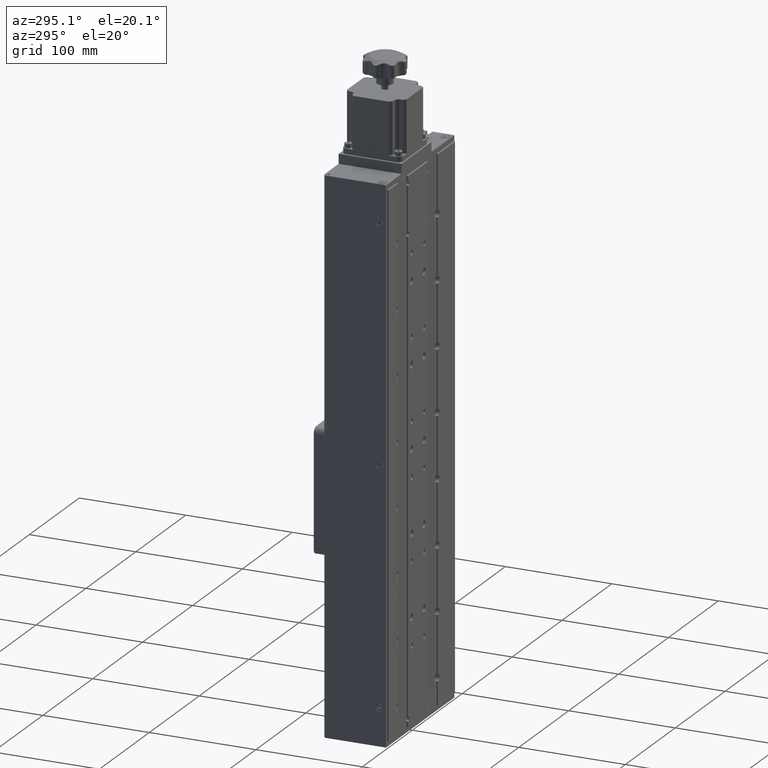
[diagram: clean part render]
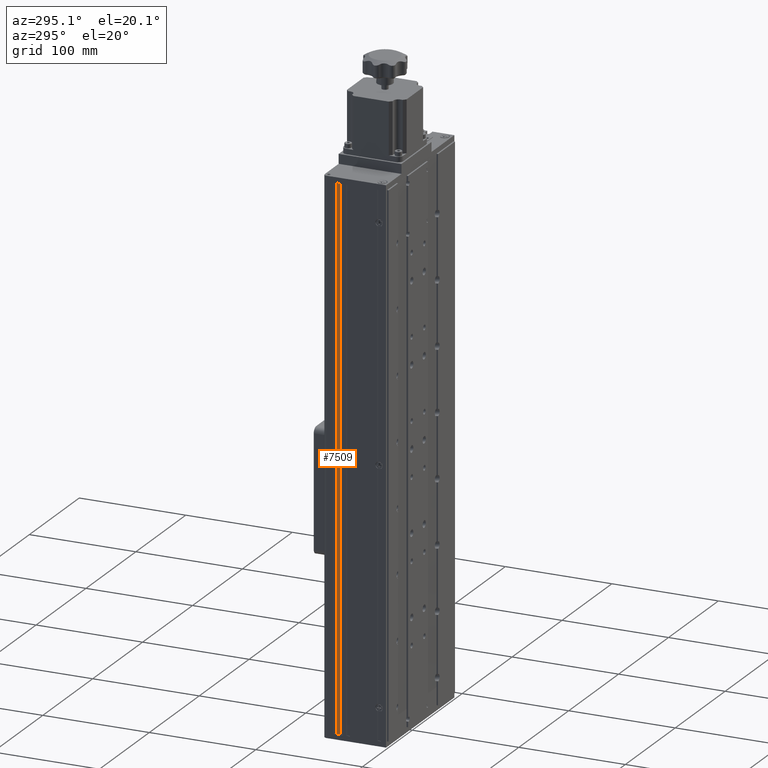
[diagram: same view with one face highlighted and labeled with its STEP entity id]
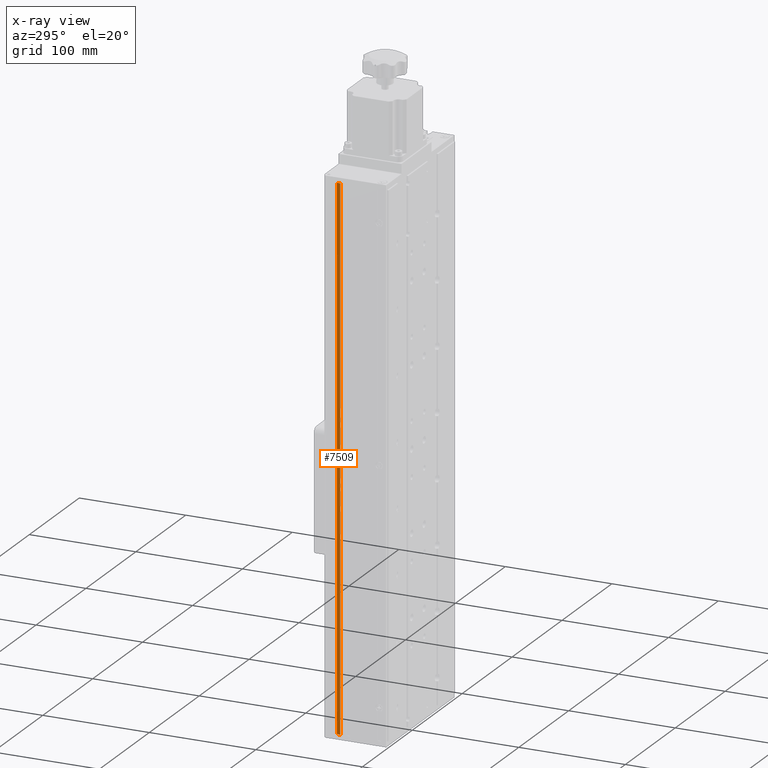
[diagram: x-ray of the same camera — body ghosted, the highlighted face saturated]
A machine part, auxiliary view. The second image highlights one B-rep face of the part: STEP entity #7509.
The next image is the same camera in x-ray: the body ghosted, the highlighted face saturated — about 0% of this face is hidden behind the body in this view.
In plain terms, the highlighted planar face has unit normal (-1, 0, 0).
Its self-contained STEP definition (entity closure, byte-faithful):
#753 = ORIENTED_EDGE ( 'NONE', *, *, #3203, .F. ) ;
#1406 = VERTEX_POINT ( 'NONE', #30058 ) ;
#2674 = DIRECTION ( 'NONE',  ( 0.0000000000000000000, 1.000000000000000000, 0.0000000000000000000 ) ) ;
#3203 = EDGE_CURVE ( 'NONE', #1406, #8827, #21294, .T. ) ;
#3245 = CARTESIAN_POINT ( 'NONE',  ( -71.61080835603992500, 34.08234937935211000, 249.5000000000000000 ) ) ;
#3834 = VERTEX_POINT ( 'NONE', #27127 ) ;
#4130 = CARTESIAN_POINT ( 'NONE',  ( -71.61080835603992500, 37.08234937935210200, 249.5000000000000000 ) ) ;
#4860 = ORIENTED_EDGE ( 'NONE', *, *, #32011, .T. ) ;
#4953 = ORIENTED_EDGE ( 'NONE', *, *, #8418, .F. ) ;
#6518 = DIRECTION ( 'NONE',  ( 0.0000000000000000000, 0.0000000000000000000, 1.000000000000000000 ) ) ;
#6607 = VECTOR ( 'NONE', #7232, 1000.000000000000000 ) ;
#6741 = VECTOR ( 'NONE', #2674, 1000.000000000000000 ) ;
#7232 = DIRECTION ( 'NONE',  ( -0.0000000000000000000, -0.0000000000000000000, -1.000000000000000000 ) ) ;
#7509 = ADVANCED_FACE ( 'NONE', ( #25312 ), #9682, .T. ) ;
#8135 = CARTESIAN_POINT ( 'NONE',  ( -71.61080835603992500, 34.08234937935211000, 249.5000000000000000 ) ) ;
#8418 = EDGE_CURVE ( 'NONE', #8827, #3834, #29700, .T. ) ;
#8827 = VERTEX_POINT ( 'NONE', #33276 ) ;
#9682 = PLANE ( 'NONE',  #17285 ) ;
#9928 = ORIENTED_EDGE ( 'NONE', *, *, #20251, .T. ) ;
#11742 = DIRECTION ( 'NONE',  ( 0.0000000000000000000, 1.000000000000000000, 0.0000000000000000000 ) ) ;
#14621 = DIRECTION ( 'NONE',  ( -0.0000000000000000000, -0.0000000000000000000, -1.000000000000000000 ) ) ;
#15020 = CARTESIAN_POINT ( 'NONE',  ( -71.61080835603992500, 34.08234937935211000, -249.5000000000000000 ) ) ;
#16954 = CARTESIAN_POINT ( 'NONE',  ( -71.61080835603992500, 37.08234937935210200, 249.5000000000000000 ) ) ;
#17285 = AXIS2_PLACEMENT_3D ( 'NONE', #3245, #26058, #6518 ) ;
#20251 = EDGE_CURVE ( 'NONE', #1406, #37937, #33765, .T. ) ;
#21294 = LINE ( 'NONE', #8135, #28948 ) ;
#24994 = LINE ( 'NONE', #16954, #6607 ) ;
#25312 = FACE_OUTER_BOUND ( 'NONE', #29723, .T. ) ;
#26058 = DIRECTION ( 'NONE',  ( -1.000000000000000000, 0.0000000000000000000, 0.0000000000000000000 ) ) ;
#27127 = CARTESIAN_POINT ( 'NONE',  ( -71.61080835603992500, 37.08234937935210200, -249.5000000000000000 ) ) ;
#28948 = VECTOR ( 'NONE', #14621, 1000.000000000000000 ) ;
#29700 = LINE ( 'NONE', #15020, #37318 ) ;
#29723 = EDGE_LOOP ( 'NONE', ( #4953, #753, #9928, #4860 ) ) ;
#30058 = CARTESIAN_POINT ( 'NONE',  ( -71.61080835603992500, 34.08234937935211000, 249.5000000000000000 ) ) ;
#32011 = EDGE_CURVE ( 'NONE', #37937, #3834, #24994, .T. ) ;
#33276 = CARTESIAN_POINT ( 'NONE',  ( -71.61080835603992500, 34.08234937935211000, -249.5000000000000000 ) ) ;
#33765 = LINE ( 'NONE', #41687, #6741 ) ;
#37318 = VECTOR ( 'NONE', #11742, 1000.000000000000000 ) ;
#37937 = VERTEX_POINT ( 'NONE', #4130 ) ;
#41687 = CARTESIAN_POINT ( 'NONE',  ( -71.61080835603992500, 34.08234937935211000, 249.5000000000000000 ) ) ;